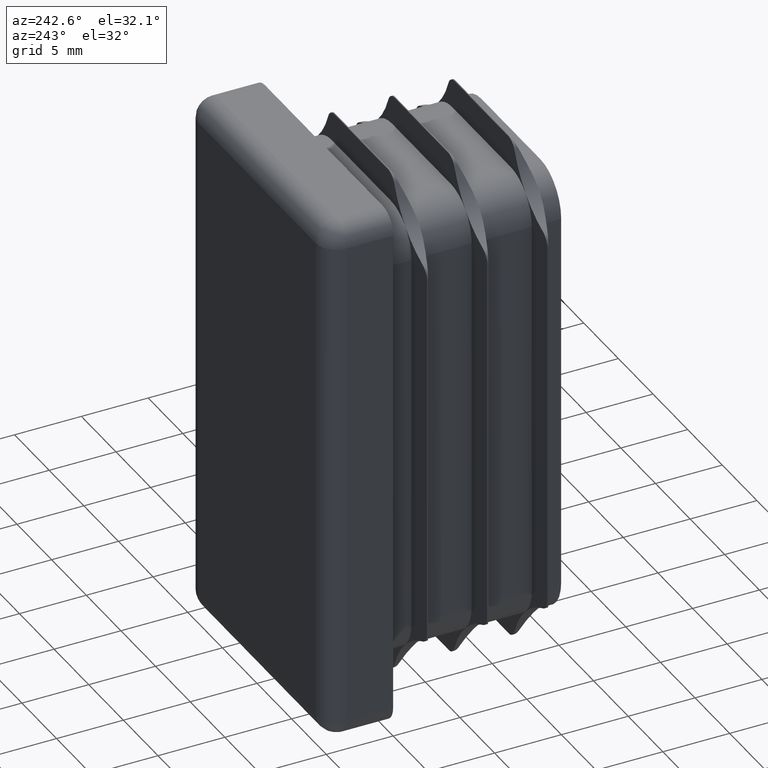
[diagram: clean part render]
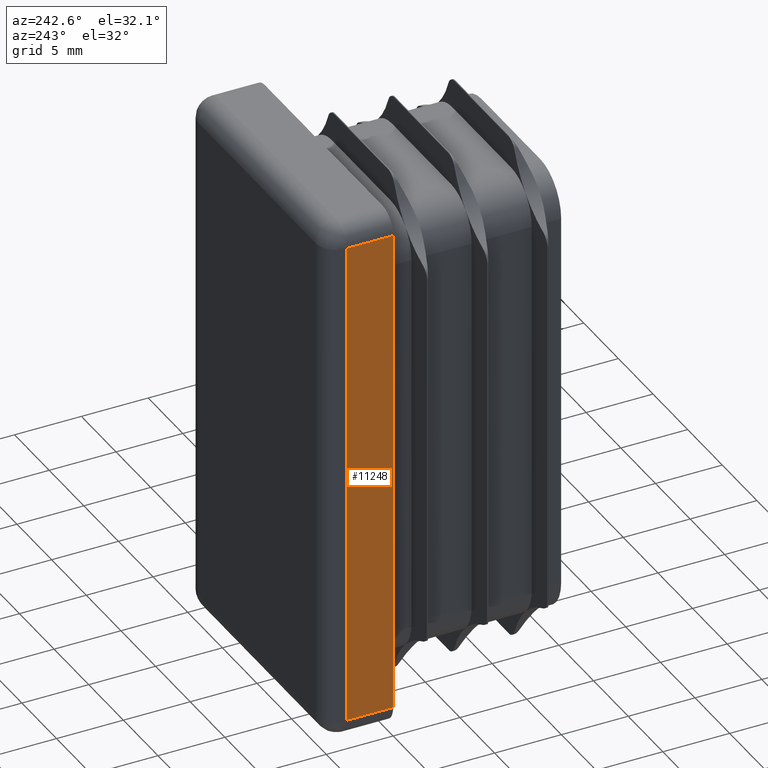
[diagram: same view with one face highlighted and labeled with its STEP entity id]
A machine part, auxiliary view. The second image highlights one B-rep face of the part: STEP entity #11248.
In plain terms, the highlighted planar face has unit normal (1, 0, -0).
Its self-contained STEP definition (entity closure, byte-faithful):
#52 = EDGE_CURVE ( 'NONE', #6203, #1511, #8314, .T. ) ;
#379 = VECTOR ( 'NONE', #12792, 1000.000000000000000 ) ;
#1137 = DIRECTION ( 'NONE',  ( -8.673617379884035472E-17, -0.000000000000000000, -1.000000000000000000 ) ) ;
#1303 = CARTESIAN_POINT ( 'NONE',  ( -10.00000000000000000, 3.500000000000000000, -18.50000000000000000 ) ) ;
#1438 = VECTOR ( 'NONE', #1137, 1000.000000000000000 ) ;
#1511 = VERTEX_POINT ( 'NONE', #13022 ) ;
#1974 = CARTESIAN_POINT ( 'NONE',  ( -10.00000000000000000, 5.000000000000000000, -18.50000000000000000 ) ) ;
#3592 = CARTESIAN_POINT ( 'NONE',  ( -10.00000000000000000, 0.000000000000000000, -18.50000000000000000 ) ) ;
#4275 = AXIS2_PLACEMENT_3D ( 'NONE', #5822, #17586, #8782 ) ;
#4627 = VECTOR ( 'NONE', #17943, 1000.000000000000000 ) ;
#4781 = DIRECTION ( 'NONE',  ( 0.000000000000000000, -1.000000000000000000, 0.000000000000000000 ) ) ;
#5799 = LINE ( 'NONE', #10065, #1438 ) ;
#5822 = CARTESIAN_POINT ( 'NONE',  ( -10.00000000000000000, 5.000000000000000000, -20.00000000000000000 ) ) ;
#5985 = ORIENTED_EDGE ( 'NONE', *, *, #12448, .T. ) ;
#6203 = VERTEX_POINT ( 'NONE', #3592 ) ;
#6342 = ORIENTED_EDGE ( 'NONE', *, *, #11574, .T. ) ;
#7942 = ORIENTED_EDGE ( 'NONE', *, *, #52, .T. ) ;
#8170 = LINE ( 'NONE', #14266, #379 ) ;
#8314 = LINE ( 'NONE', #13725, #4627 ) ;
#8782 = DIRECTION ( 'NONE',  ( -8.673617379884035472E-17, 0.000000000000000000, -1.000000000000000000 ) ) ;
#9956 = FACE_OUTER_BOUND ( 'NONE', #13755, .T. ) ;
#10065 = CARTESIAN_POINT ( 'NONE',  ( -10.00000000000000000, 3.500000000000000000, -18.50000000000000000 ) ) ;
#11075 = VECTOR ( 'NONE', #4781, 1000.000000000000000 ) ;
#11202 = CARTESIAN_POINT ( 'NONE',  ( -9.999999999999996447, 3.500000000000000000, 18.50000000000000000 ) ) ;
#11248 = ADVANCED_FACE ( 'NONE', ( #9956 ), #18938, .F. ) ;
#11574 = EDGE_CURVE ( 'NONE', #13153, #11873, #5799, .T. ) ;
#11873 = VERTEX_POINT ( 'NONE', #1303 ) ;
#12448 = EDGE_CURVE ( 'NONE', #11873, #6203, #18427, .T. ) ;
#12792 = DIRECTION ( 'NONE',  ( -0.000000000000000000, 1.000000000000000000, -0.000000000000000000 ) ) ;
#13022 = CARTESIAN_POINT ( 'NONE',  ( -9.999999999999996447, 0.000000000000000000, 18.50000000000000000 ) ) ;
#13153 = VERTEX_POINT ( 'NONE', #11202 ) ;
#13725 = CARTESIAN_POINT ( 'NONE',  ( -10.00000000000000000, 0.000000000000000000, -20.00000000000000000 ) ) ;
#13755 = EDGE_LOOP ( 'NONE', ( #17366, #6342, #5985, #7942 ) ) ;
#14266 = CARTESIAN_POINT ( 'NONE',  ( -9.999999999999996447, 5.000000000000000000, 18.50000000000000000 ) ) ;
#14648 = EDGE_CURVE ( 'NONE', #1511, #13153, #8170, .T. ) ;
#17366 = ORIENTED_EDGE ( 'NONE', *, *, #14648, .T. ) ;
#17586 = DIRECTION ( 'NONE',  ( 1.000000000000000000, 0.000000000000000000, -8.673617379884035472E-17 ) ) ;
#17943 = DIRECTION ( 'NONE',  ( 8.673617379884035472E-17, 0.000000000000000000, 1.000000000000000000 ) ) ;
#18427 = LINE ( 'NONE', #1974, #11075 ) ;
#18938 = PLANE ( 'NONE',  #4275 ) ;